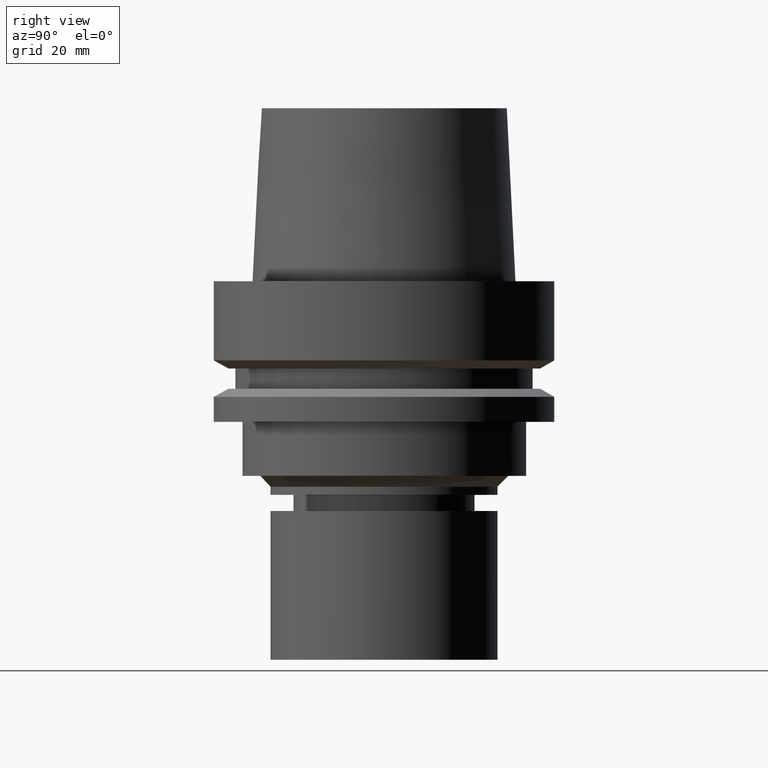
[diagram: clean part render]
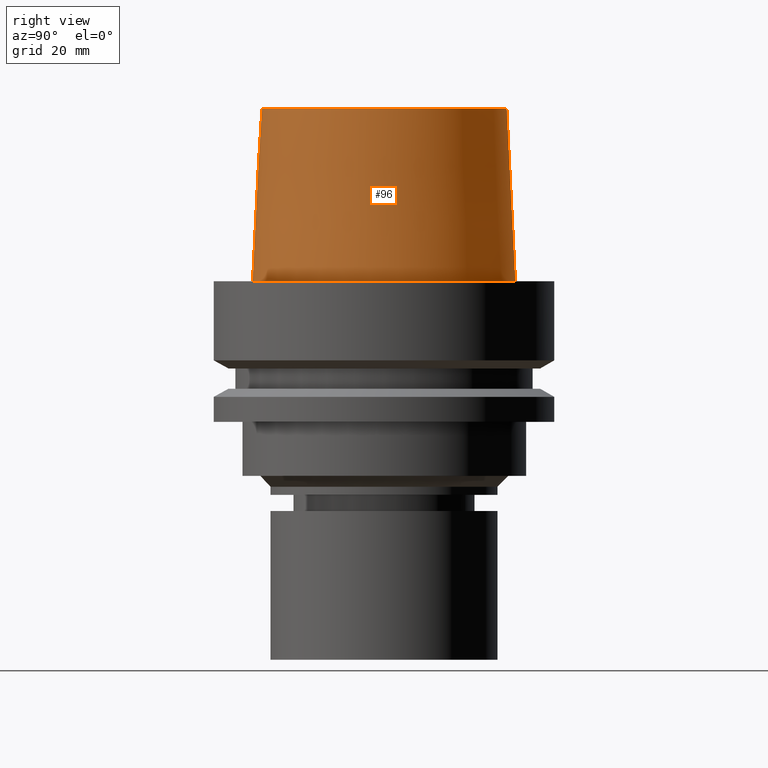
[diagram: same view with one face highlighted and labeled with its STEP entity id]
A machine part, right view. The second image highlights one B-rep face of the part: STEP entity #96.
In plain terms, the highlighted conical surface has half-angle 2.862 deg.
Its self-contained STEP definition (entity closure, byte-faithful):
#83=EDGE_CURVE('Unnamed[1]',#225,#225,#226,.T.);
#96=ADVANCED_FACE('Unnamed[1]',(#243,#244),#245,.T.);
#98=EDGE_CURVE('Unnamed[1]',#247,#247,#248,.T.);
#225=VERTEX_POINT('',#426);
#226=CIRCLE('',#427,24.315);
#243=FACE_BOUND('',#448,.T.);
#244=FACE_BOUND('',#449,.T.);
#245=CONICAL_SURFACE('',#450,23.515,0.0499583957219433);
#247=VERTEX_POINT('',#453);
#248=CIRCLE('',#454,22.715);
#426=CARTESIAN_POINT('',(-2.99705514225764E-031,24.315,2.97772869212679E-015));
#427=AXIS2_PLACEMENT_3D('',#658,#659,#660);
#448=EDGE_LOOP('',(#675));
#449=EDGE_LOOP('',(#676));
#450=AXIS2_PLACEMENT_3D('',#677,#678,#679);
#453=CARTESIAN_POINT('',(-1.95943487863576E-015,22.715,32.0));
#454=AXIS2_PLACEMENT_3D('',#680,#681,#682);
#658=CARTESIAN_POINT('',(0.0,0.0,0.0));
#659=DIRECTION('',(-6.12323399573677E-017,-1.22464679914735E-016,1.0));
#660=DIRECTION('',(-1.23259516440783E-032,1.0,1.22464679914735E-016));
#675=ORIENTED_EDGE('',*,*,#98,.F.);
#676=ORIENTED_EDGE('',*,*,#83,.T.);
#677=CARTESIAN_POINT('',(-9.79717439317882E-016,-1.95943487863576E-015,16.0));
#678=DIRECTION('',(6.12323399573677E-017,1.22464679914735E-016,-1.0));
#679=DIRECTION('',(-1.23259516440783E-032,1.0,1.22464679914735E-016));
#680=CARTESIAN_POINT('',(-1.95943487863576E-015,-3.91886975727153E-015,32.0));
#681=DIRECTION('',(-6.12323399573676E-017,-1.22464679914735E-016,1.0));
#682=DIRECTION('',(-1.23259516440783E-032,1.0,1.22464679914735E-016));